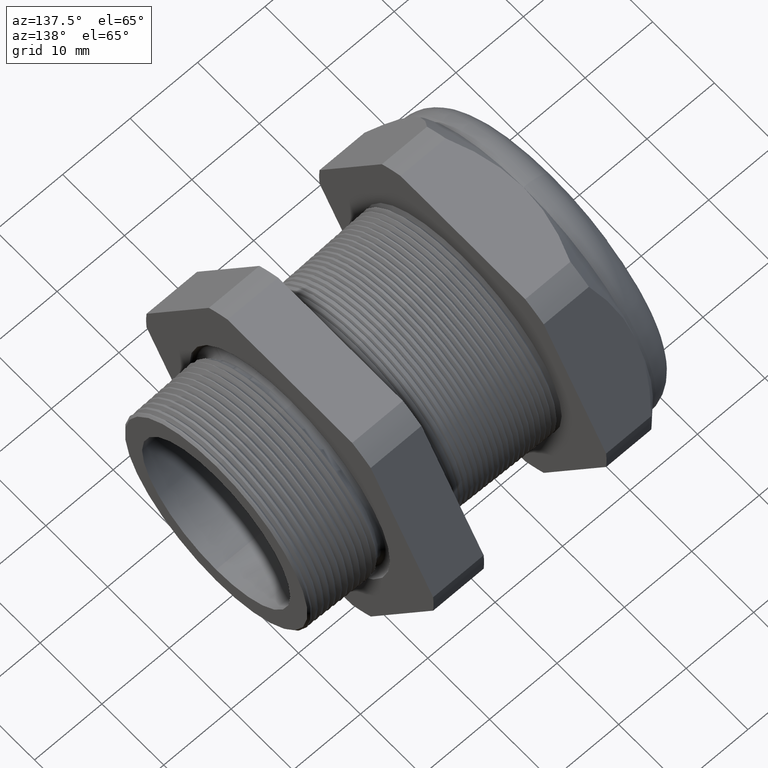
[diagram: clean part render]
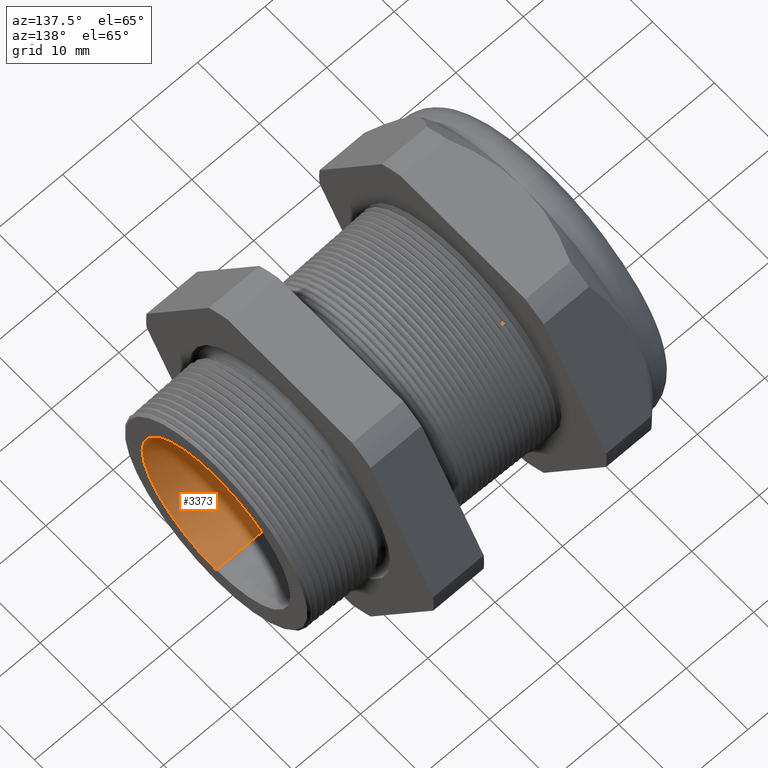
[diagram: same view with one face highlighted and labeled with its STEP entity id]
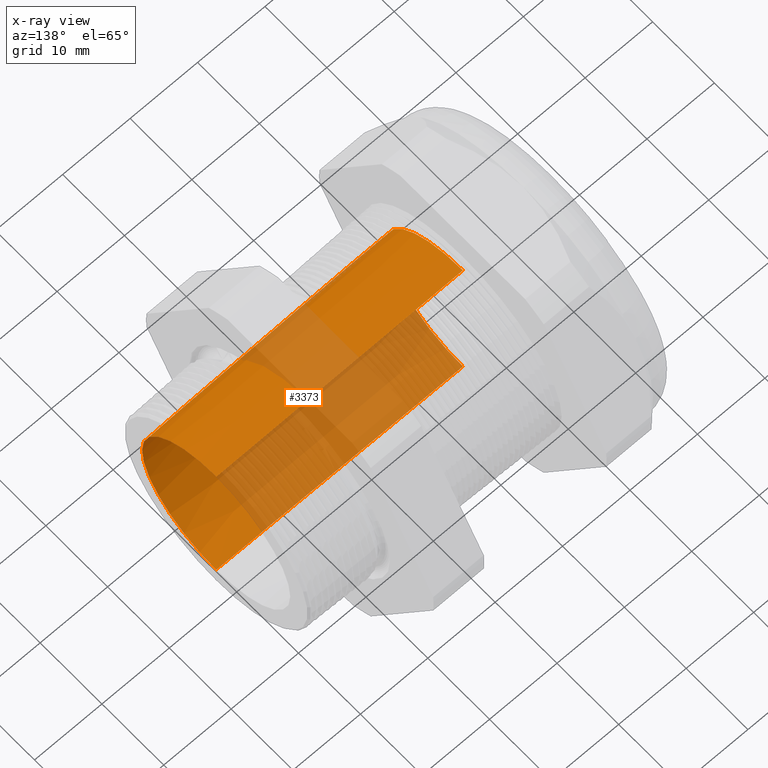
[diagram: x-ray of the same camera — body ghosted, the highlighted face saturated]
A machine part, auxiliary view. The second image highlights one B-rep face of the part: STEP entity #3373.
The next image is the same camera in x-ray: the body ghosted, the highlighted face saturated — about 48% of this face is hidden behind the body in this view.
In plain terms, the highlighted conical surface has half-angle 0.705 deg.
Its self-contained STEP definition (entity closure, byte-faithful):
#68 = DIRECTION ( 'NONE',  ( 0.0000000000000000000, 0.0000000000000000000, -1.000000000000000000 ) ) ;
#69 = DIRECTION ( 'NONE',  ( 1.000000000000000000, 0.0000000000000000000, 0.0000000000000000000 ) ) ;
#70 = CARTESIAN_POINT ( 'NONE',  ( 0.1200000000000000400, 0.0000000000000000000, 0.0000000000000000000 ) ) ;
#71 = AXIS2_PLACEMENT_3D ( 'NONE', #70, #69, #68 ) ;
#72 = CIRCLE ( 'NONE', #71, 0.4722840254060285400 ) ;
#91 = CARTESIAN_POINT ( 'NONE',  ( 0.1200000000000000400, 0.0000000000000000000, 0.4722840254060285400 ) ) ;
#92 = DIRECTION ( 'NONE',  ( 0.0000000000000000000, 0.0000000000000000000, 1.000000000000000000 ) ) ;
#93 = DIRECTION ( 'NONE',  ( -1.000000000000000000, 0.0000000000000000000, 0.0000000000000000000 ) ) ;
#94 = CARTESIAN_POINT ( 'NONE',  ( -1.320314960629921200, 0.0000000000000000000, 0.0000000000000000000 ) ) ;
#95 = AXIS2_PLACEMENT_3D ( 'NONE', #94, #93, #92 ) ;
#96 = CONICAL_SURFACE ( 'NONE', #95, 0.4899999999999999900, 0.01229944958745177900 ) ;
#97 = FACE_OUTER_BOUND ( 'NONE', #3374, .T. ) ;
#129 = CARTESIAN_POINT ( 'NONE',  ( -1.320314960629921200, 6.000769315822029800E-017, -0.4899999999999999900 ) ) ;
#130 = CARTESIAN_POINT ( 'NONE',  ( -1.320314960629921200, 0.0000000000000000000, 0.4899999999999999900 ) ) ;
#131 = DIRECTION ( 'NONE',  ( 0.0000000000000000000, 0.0000000000000000000, -1.000000000000000000 ) ) ;
#132 = DIRECTION ( 'NONE',  ( 1.000000000000000000, 0.0000000000000000000, 0.0000000000000000000 ) ) ;
#133 = CARTESIAN_POINT ( 'NONE',  ( -1.320314960629921200, 0.0000000000000000000, 0.0000000000000000000 ) ) ;
#134 = AXIS2_PLACEMENT_3D ( 'NONE', #133, #132, #131 ) ;
#135 = CIRCLE ( 'NONE', #134, 0.4899999999999999900 ) ;
#148 = CARTESIAN_POINT ( 'NONE',  ( 0.1200000000000000400, 5.892290257920615800E-017, -0.4722840254060285400 ) ) ;
#155 = DIRECTION ( 'NONE',  ( -0.9999243627234416500, 0.0000000000000000000, 0.01229913948693142600 ) ) ;
#156 = VECTOR ( 'NONE', #155, 39.37007874015748900 ) ;
#157 = CARTESIAN_POINT ( 'NONE',  ( -1.320314960629921200, 0.0000000000000000000, 0.4899999999999999900 ) ) ;
#158 = LINE ( 'NONE', #157, #156 ) ;
#159 = DIRECTION ( 'NONE',  ( -0.9999243627234416500, 1.506210180493738900E-018, -0.01229913948693142600 ) ) ;
#160 = VECTOR ( 'NONE', #159, 39.37007874015748900 ) ;
#161 = CARTESIAN_POINT ( 'NONE',  ( -1.320314960629921200, 6.000769315822029800E-017, -0.4899999999999999900 ) ) ;
#162 = LINE ( 'NONE', #161, #160 ) ;
#3360 = EDGE_CURVE ( 'NONE', #3376, #3378, #72, .T. ) ;
#3373 = ADVANCED_FACE ( 'NONE', ( #97 ), #96, .F. ) ;
#3374 = EDGE_LOOP ( 'NONE', ( #3375, #3412, #3413, #3411 ) ) ;
#3375 = ORIENTED_EDGE ( 'NONE', *, *, #3360, .T. ) ;
#3376 = VERTEX_POINT ( 'NONE', #91 ) ;
#3378 = VERTEX_POINT ( 'NONE', #148 ) ;
#3388 = EDGE_CURVE ( 'NONE', #3389, #3391, #135, .T. ) ;
#3389 = VERTEX_POINT ( 'NONE', #130 ) ;
#3391 = VERTEX_POINT ( 'NONE', #129 ) ;
#3409 = EDGE_CURVE ( 'NONE', #3378, #3391, #162, .T. ) ;
#3410 = EDGE_CURVE ( 'NONE', #3376, #3389, #158, .T. ) ;
#3411 = ORIENTED_EDGE ( 'NONE', *, *, #3410, .F. ) ;
#3412 = ORIENTED_EDGE ( 'NONE', *, *, #3409, .T. ) ;
#3413 = ORIENTED_EDGE ( 'NONE', *, *, #3388, .F. ) ;